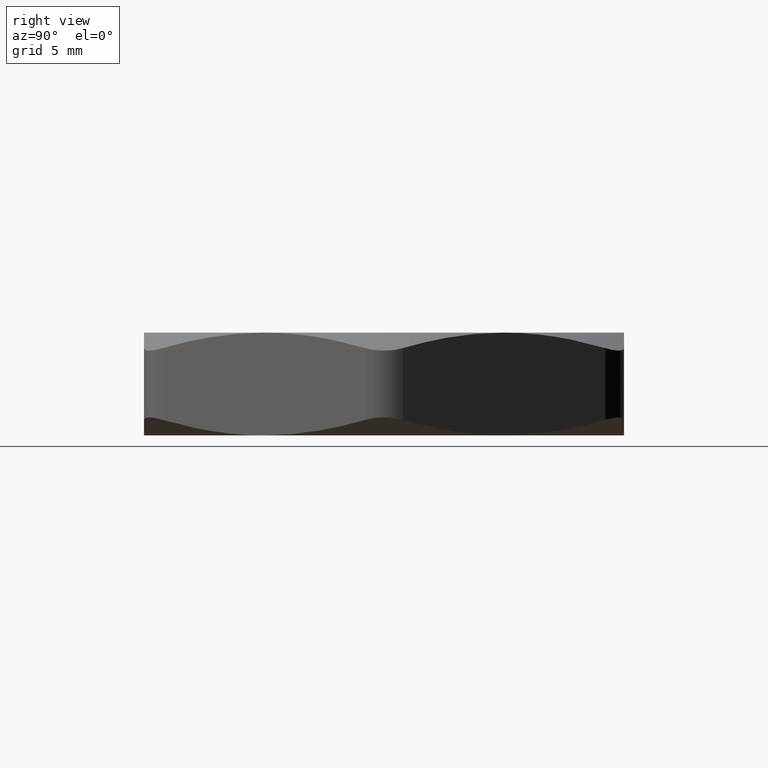
[diagram: clean part render]
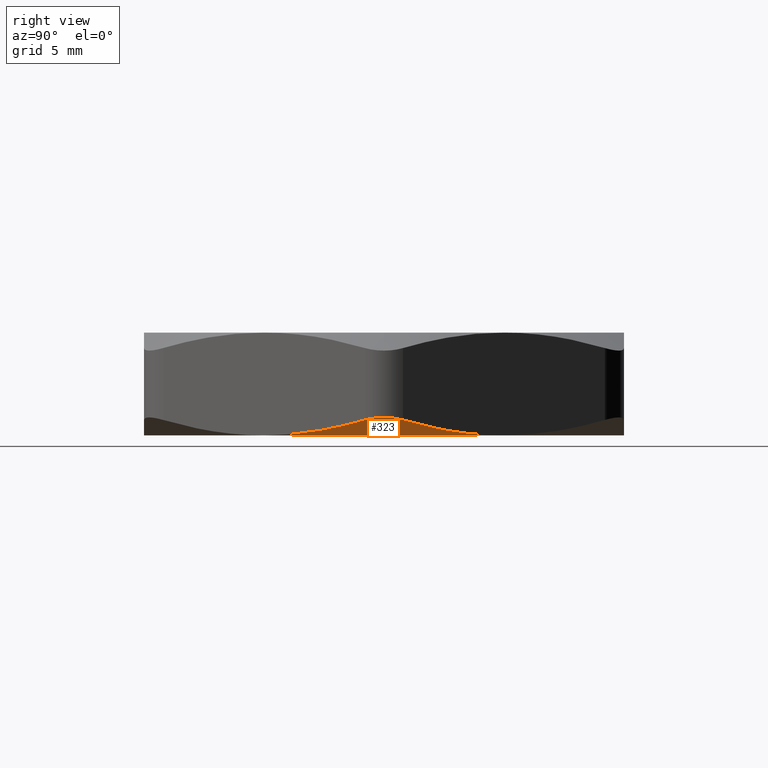
[diagram: same view with one face highlighted and labeled with its STEP entity id]
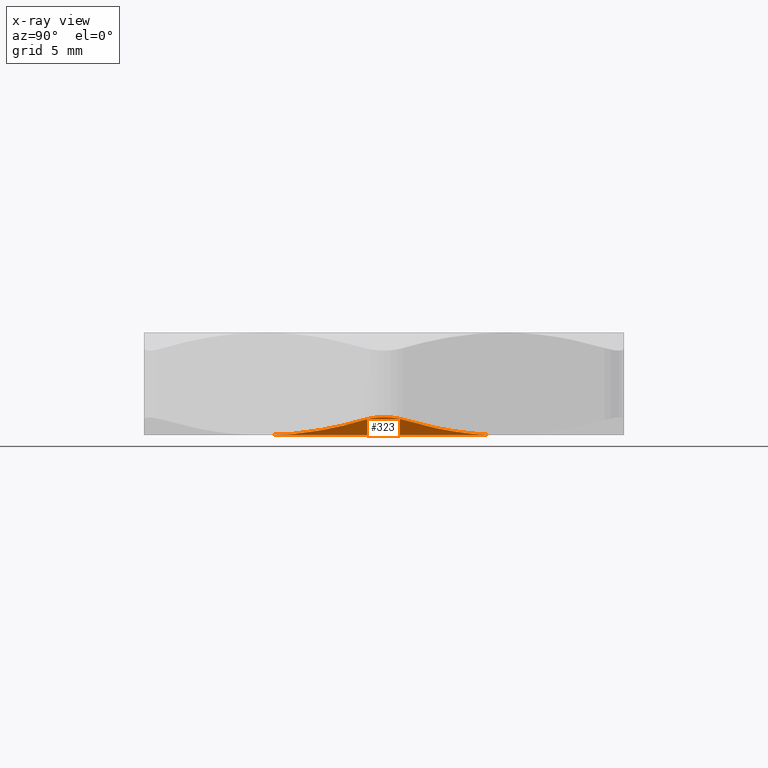
[diagram: x-ray of the same camera — body ghosted, the highlighted face saturated]
A machine part, right view. The second image highlights one B-rep face of the part: STEP entity #323.
The next image is the same camera in x-ray: the body ghosted, the highlighted face saturated — about 0% of this face is hidden behind the body in this view.
In plain terms, the highlighted conical surface has half-angle 60 deg.
Its self-contained STEP definition (entity closure, byte-faithful):
#95 = EDGE_CURVE ( 'NONE', #134, #1013, #1179, .T. ) ;
#133 = VERTEX_POINT ( 'NONE', #1203 ) ;
#134 = VERTEX_POINT ( 'NONE', #1204 ) ;
#135 = EDGE_CURVE ( 'NONE', #780, #133, #1145, .T. ) ;
#246 = EDGE_LOOP ( 'NONE', ( #295, #296, #299, #297 ) ) ;
#295 = ORIENTED_EDGE ( 'NONE', *, *, #135, .T. ) ;
#296 = ORIENTED_EDGE ( 'NONE', *, *, #298, .T. ) ;
#297 = ORIENTED_EDGE ( 'NONE', *, *, #1048, .F. ) ;
#298 = EDGE_CURVE ( 'NONE', #133, #134, #2155, .T. ) ;
#299 = ORIENTED_EDGE ( 'NONE', *, *, #95, .T. ) ;
#323 = ADVANCED_FACE ( 'NONE', ( #2200 ), #2208, .T. ) ;
#780 = VERTEX_POINT ( 'NONE', #1817 ) ;
#1013 = VERTEX_POINT ( 'NONE', #2105 ) ;
#1048 = EDGE_CURVE ( 'NONE', #780, #1013, #2087, .T. ) ;
#1137 = CARTESIAN_POINT ( 'NONE',  ( 0.6985938257194470600, 0.05000000000000062000, 0.04063440198708880700 ) ) ;
#1138 = CARTESIAN_POINT ( 'NONE',  ( 0.6735708840619102400, 0.09334100630568675800, 0.02801064249808473500 ) ) ;
#1139 = CARTESIAN_POINT ( 'NONE',  ( 0.6483486485597698100, 0.1370271996758610200, 0.01779319626366878500 ) ) ;
#1140 = CARTESIAN_POINT ( 'NONE',  ( 0.6101169651734225100, 0.2032464177599016800, 0.007276543638359228200 ) ) ;
#1141 = CARTESIAN_POINT ( 'NONE',  ( 0.5973066776875479700, 0.2254344865450000600, 0.004572635249509511400 ) ) ;
#1142 = CARTESIAN_POINT ( 'NONE',  ( 0.5715396779322160500, 0.2700642392798497900, 0.0009327802382050392700 ) ) ;
#1143 = CARTESIAN_POINT ( 'NONE',  ( 0.5585351079282792100, 0.2925888152572542800, 7.896748106685763500E-017 ) ) ;
#1144 = CARTESIAN_POINT ( 'NONE',  ( 0.5455960043841965300, 0.3149999999999998900, 0.0000000000000000000 ) ) ;
#1145 = B_SPLINE_CURVE_WITH_KNOTS ( 'NONE', 3,
 ( #1144, #1143, #1142, #1141, #1140, #1139, #1138, #1137 ),
 .UNSPECIFIED., .F., .F.,
 ( 4, 2, 2, 4 ),
 ( 0.009348348844219089800, 0.01130023374885201700, 0.01325211865348494300, 0.01715588846275079400 ),
 .UNSPECIFIED. ) ;
#1162 = CARTESIAN_POINT ( 'NONE',  ( 0.5455960043841964200, -0.3150000000000000000, 0.0000000000000000000 ) ) ;
#1163 = CARTESIAN_POINT ( 'NONE',  ( 0.5715820496866896900, -0.2699908492482948600, -1.758093581860106800E-016 ) ) ;
#1164 = CARTESIAN_POINT ( 'NONE',  ( 0.5972982428045541200, -0.2254490961909003700, 0.003757227413498570600 ) ) ;
#1165 = CARTESIAN_POINT ( 'NONE',  ( 0.6482643925990089200, -0.1371731352807382400, 0.01776322256556900300 ) ) ;
#1179 = B_SPLINE_CURVE_WITH_KNOTS ( 'NONE', 3,
 ( #1241, #1240, #1165, #1164, #1163, #1162 ),
 .UNSPECIFIED., .F., .F.,
 ( 4, 2, 4 ),
 ( 0.001508274084134160100, 0.005428311464176628500, 0.009348348844219096800 ),
 .UNSPECIFIED. ) ;
#1203 = CARTESIAN_POINT ( 'NONE',  ( 0.6985938257194470600, 0.05000000000000062000, 0.04063440198708880700 ) ) ;
#1204 = CARTESIAN_POINT ( 'NONE',  ( 0.6985938257194471700, -0.04999999999999955900, 0.04063440198708878600 ) ) ;
#1240 = CARTESIAN_POINT ( 'NONE',  ( 0.6735164195124553300, -0.09343534167255263000, 0.02798316581758868200 ) ) ;
#1241 = CARTESIAN_POINT ( 'NONE',  ( 0.6985938257194471700, -0.04999999999999955900, 0.04063440198708878600 ) ) ;
#1817 = CARTESIAN_POINT ( 'NONE',  ( 0.5455960043841965300, 0.3149999999999998900, 0.0000000000000000000 ) ) ;
#2083 = DIRECTION ( 'NONE',  ( -1.000000000000000000, 0.0000000000000000000, 0.0000000000000000000 ) ) ;
#2084 = DIRECTION ( 'NONE',  ( -0.0000000000000000000, 0.0000000000000000000, -1.000000000000000000 ) ) ;
#2085 = CARTESIAN_POINT ( 'NONE',  ( 0.0000000000000000000, 0.0000000000000000000, 0.0000000000000000000 ) ) ;
#2086 = AXIS2_PLACEMENT_3D ( 'NONE', #2085, #2084, #2083 ) ;
#2087 = CIRCLE ( 'NONE', #2086, 0.6300000000000001200 ) ;
#2105 = CARTESIAN_POINT ( 'NONE',  ( 0.5455960043841964200, -0.3150000000000000000, 0.0000000000000000000 ) ) ;
#2121 = CARTESIAN_POINT ( 'NONE',  ( 0.7119985690027950100, -0.008701713442470599900, 0.04734130525848834900 ) ) ;
#2122 = CARTESIAN_POINT ( 'NONE',  ( 0.7119839322820024100, 0.008868323402860235600, 0.04733404162806206800 ) ) ;
#2123 = CARTESIAN_POINT ( 'NONE',  ( 0.7108055728491826700, 0.01767595696362381600, 0.04675043063081306400 ) ) ;
#2136 = CARTESIAN_POINT ( 'NONE',  ( 0.7108156407004322400, -0.01759272223586433700, 0.04675539854059034000 ) ) ;
#2150 = CARTESIAN_POINT ( 'NONE',  ( 0.7062286841983059800, 0.03458345741736586200, 0.04446951372648438900 ) ) ;
#2151 = CARTESIAN_POINT ( 'NONE',  ( 0.7029046002147839600, 0.04253351955410487200, 0.04280913352685863900 ) ) ;
#2152 = CARTESIAN_POINT ( 'NONE',  ( 0.6985938257194470600, 0.05000000000000062000, 0.04063440198708880700 ) ) ;
#2155 = B_SPLINE_CURVE_WITH_KNOTS ( 'NONE', 3,
 ( #2152, #2151, #2150, #2123, #2122, #2121, #2136, #2165, #2161, #2159 ),
 .UNSPECIFIED., .F., .F.,
 ( 4, 2, 2, 2, 4 ),
 ( 6.347908816782737800E-018, 0.0006684479132045145800, 0.001336895826409022600, 0.002005343739613531200, 0.002673791652818039200 ),
 .UNSPECIFIED. ) ;
#2159 = CARTESIAN_POINT ( 'NONE',  ( 0.6985938257194471700, -0.04999999999999955900, 0.04063440198708878600 ) ) ;
#2161 = CARTESIAN_POINT ( 'NONE',  ( 0.7029057980499855400, -0.04253144484267685300, 0.04280973781965913300 ) ) ;
#2165 = CARTESIAN_POINT ( 'NONE',  ( 0.7062901057731630900, -0.03440188298593976200, 0.04450017217886050000 ) ) ;
#2198 = DIRECTION ( 'NONE',  ( -1.000000000000000000, 0.0000000000000000000, 0.0000000000000000000 ) ) ;
#2200 = FACE_OUTER_BOUND ( 'NONE', #246, .T. ) ;
#2208 = CONICAL_SURFACE ( 'NONE', #2234, 0.6300000000000001200, 1.047197551196600100 ) ;
#2216 = CARTESIAN_POINT ( 'NONE',  ( 0.0000000000000000000, 0.0000000000000000000, 0.0000000000000000000 ) ) ;
#2234 = AXIS2_PLACEMENT_3D ( 'NONE', #2216, #2235, #2198 ) ;
#2235 = DIRECTION ( 'NONE',  ( 0.0000000000000000000, 0.0000000000000000000, 1.000000000000000000 ) ) ;